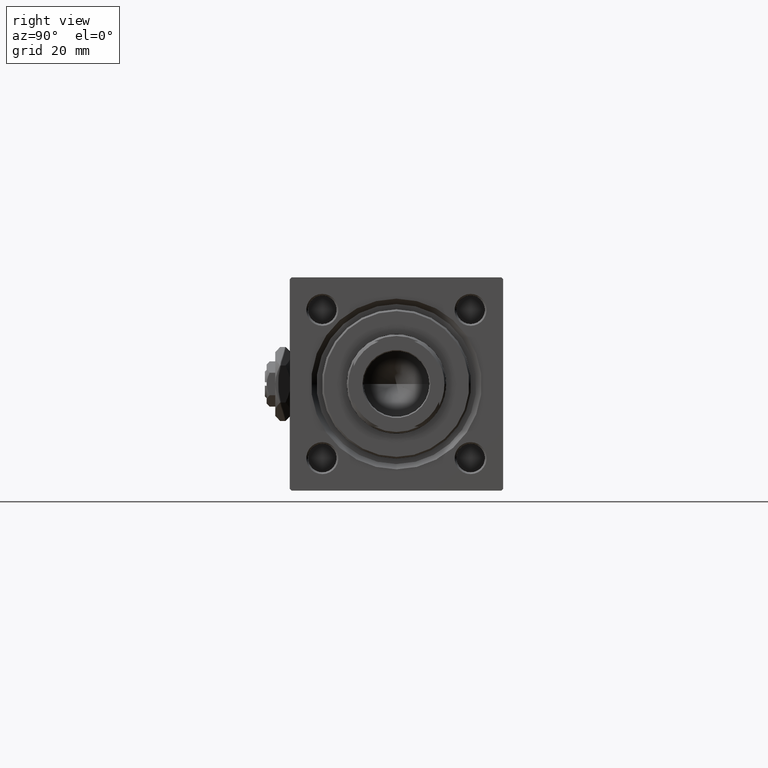
[diagram: clean part render]
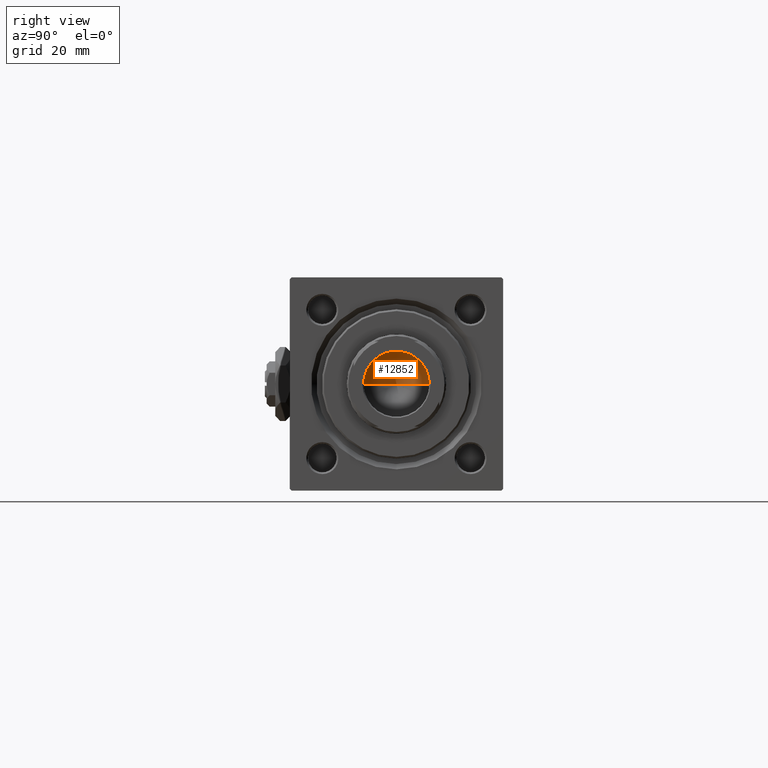
[diagram: same view with one face highlighted and labeled with its STEP entity id]
A machine part, right view. The second image highlights one B-rep face of the part: STEP entity #12852.
In plain terms, the highlighted conical surface has half-angle 59 deg.
Its self-contained STEP definition (entity closure, byte-faithful):
#2533 = CARTESIAN_POINT ( 'NONE',  ( -9.249999999999992895, 1.132798289211300712E-15, 101.0000000000000000 ) ) ;
#3578 = LINE ( 'NONE', #2533, #47547 ) ;
#3761 = LINE ( 'NONE', #19780, #7971 ) ;
#3862 = DIRECTION ( 'NONE',  ( -0.000000000000000000, -0.000000000000000000, 1.000000000000000000 ) ) ;
#5629 = ORIENTED_EDGE ( 'NONE', *, *, #12201, .F. ) ;
#6354 = CONICAL_SURFACE ( 'NONE', #26471, 9.249999999999992895, 1.029744258676653423 ) ;
#6918 = DIRECTION ( 'NONE',  ( 0.8571673007021117785, 0.000000000000000000, 0.5150380749100550437 ) ) ;
#7971 = VECTOR ( 'NONE', #6918, 1000.000000000000000 ) ;
#8207 = EDGE_LOOP ( 'NONE', ( #5629, #32540, #50772 ) ) ;
#12201 = EDGE_CURVE ( 'NONE', #18485, #37557, #3761, .T. ) ;
#12852 = ADVANCED_FACE ( 'NONE', ( #43219 ), #6354, .F. ) ;
#14358 = CARTESIAN_POINT ( 'NONE',  ( 0.000000000000000000, 0.000000000000000000, 101.0000000000000000 ) ) ;
#18141 = EDGE_CURVE ( 'NONE', #18485, #26115, #3578, .T. ) ;
#18485 = VERTEX_POINT ( 'NONE', #45484 ) ;
#18566 = DIRECTION ( 'NONE',  ( -0.8571673007021117785, 1.049727191138617956E-16, 0.5150380749100550437 ) ) ;
#19625 = CARTESIAN_POINT ( 'NONE',  ( 0.000000000000000000, 0.000000000000000000, 101.0000000000000000 ) ) ;
#19780 = CARTESIAN_POINT ( 'NONE',  ( 9.249999999999992895, 0.000000000000000000, 101.0000000000000000 ) ) ;
#21858 = AXIS2_PLACEMENT_3D ( 'NONE', #19625, #3862, #27493 ) ;
#26115 = VERTEX_POINT ( 'NONE', #29546 ) ;
#26471 = AXIS2_PLACEMENT_3D ( 'NONE', #14358, #34563, #42954 ) ;
#27493 = DIRECTION ( 'NONE',  ( 1.000000000000000000, 0.000000000000000000, 0.000000000000000000 ) ) ;
#29546 = CARTESIAN_POINT ( 'NONE',  ( -9.249999999999992895, 1.132798289211300712E-15, 101.0000000000000000 ) ) ;
#31341 = EDGE_CURVE ( 'NONE', #26115, #37557, #44506, .T. ) ;
#32540 = ORIENTED_EDGE ( 'NONE', *, *, #18141, .T. ) ;
#34563 = DIRECTION ( 'NONE',  ( -0.000000000000000000, -0.000000000000000000, 1.000000000000000000 ) ) ;
#37557 = VERTEX_POINT ( 'NONE', #38764 ) ;
#38764 = CARTESIAN_POINT ( 'NONE',  ( 9.249999999999992895, 0.000000000000000000, 101.0000000000000000 ) ) ;
#42954 = DIRECTION ( 'NONE',  ( 1.000000000000000000, 0.000000000000000000, 0.000000000000000000 ) ) ;
#43219 = FACE_OUTER_BOUND ( 'NONE', #8207, .T. ) ;
#44506 = CIRCLE ( 'NONE', #21858, 9.249999999999992895 ) ;
#45484 = CARTESIAN_POINT ( 'NONE',  ( -9.769621978240258809E-15, 0.000000000000000000, 95.44203927399506426 ) ) ;
#47547 = VECTOR ( 'NONE', #18566, 1000.000000000000000 ) ;
#50772 = ORIENTED_EDGE ( 'NONE', *, *, #31341, .T. ) ;